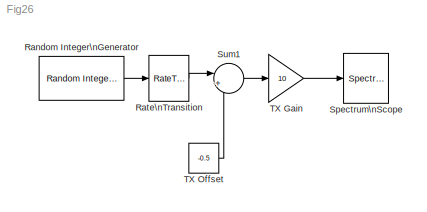
MODEL Fig26
KIND model
BLOCK [Reference] Random Integer\nGenerator  REF=commrandsrc2/Random Integer\nGenerator
  Ports = [0, 1]
  SID = 2
  SourceBlock = commrandsrc2/Random Integer\nGenerator
  SourceType = Random Integer Generator
  Ts = 1e-3
  frameBased = off
  mul = 2
  orient = on
  outDataType = double
  sampPerFrame = 50
  seed = randseed
BLOCK [RateTransition] Rate\nTransition
  OutPortSampleTime = 2e-5
  SID = 3
BLOCK [SpectrumAnalyzer] Spectrum\nScope
  Ports = [1]
  SID = 4
  ScopeSpecification = DataTag0
BLOCK [Sum] Sum1
  IconShape = round
  InputSameDT = off
  Inputs = |++
  OutDataTypeStr = Inherit: Inherit via internal rule
  Ports = [2, 1]
  SID = 5
  SaturateOnIntegerOverflow = off
BLOCK [Gain] TX Gain
  Gain = 10
  OutDataTypeStr = Inherit: Inherit via internal rule
  ParamDataTypeStr = Inherit: Inherit via internal rule
  SID = 6
  SaturateOnIntegerOverflow = off
BLOCK [Constant] TX Offset
  SID = 7
  Value = -0.5
LINE Random Integer\nGenerator:1 -> Rate\nTransition:1
LINE Rate\nTransition:1 -> Sum1:1
LINE Sum1:1 -> TX Gain:1
LINE TX Gain:1 -> Spectrum\nScope:1
LINE TX Offset:1 -> Sum1:2
